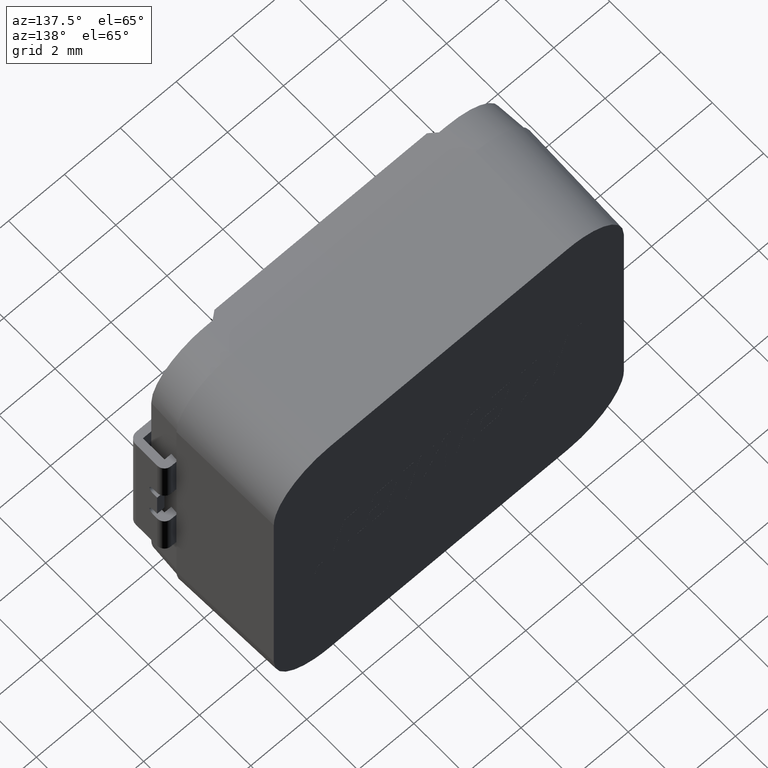
[diagram: clean part render]
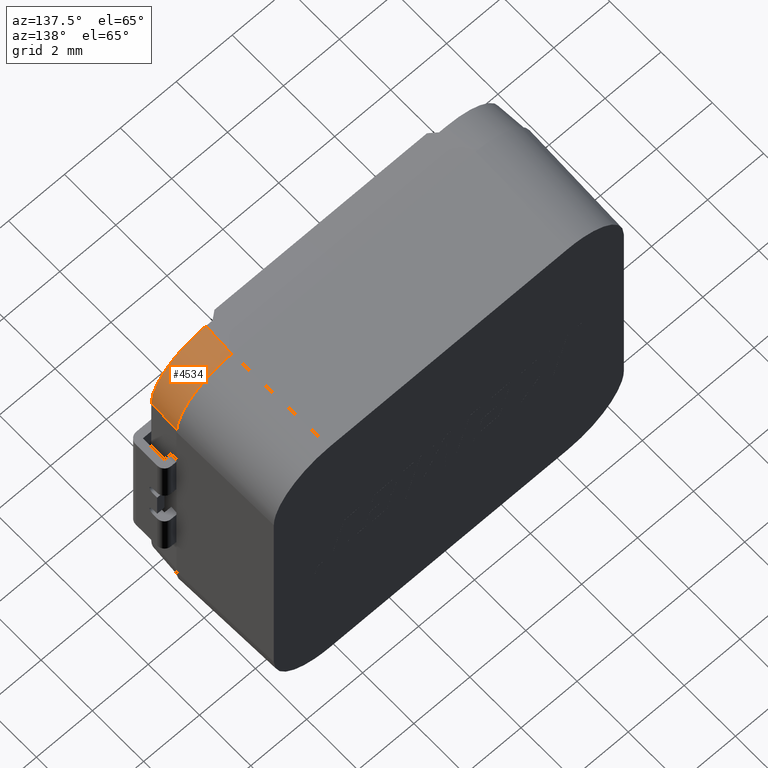
[diagram: same view with one face highlighted and labeled with its STEP entity id]
A machine part, auxiliary view. The second image highlights one B-rep face of the part: STEP entity #4534.
In plain terms, the highlighted cylindrical surface (partial cylindrical patch) has radius 1.96 mm, axis along (0.0599, 0.9964, 0.0599).
Its self-contained STEP definition (entity closure, byte-faithful):
#170 = VERTEX_POINT ( 'NONE', #727 ) ;
#220 = ORIENTED_EDGE ( 'NONE', *, *, #4684, .F. ) ;
#255 = CARTESIAN_POINT ( 'NONE',  ( 4.315276410966079723, 0.7812039017107661465, 4.315276410966071730 ) ) ;
#318 = DIRECTION ( 'NONE',  ( 0.05989553512709967775, 0.9964060666935327104, 0.05989553512709962224 ) ) ;
#437 = CARTESIAN_POINT ( 'NONE',  ( 4.315276410966081500, 0.6635975083169491917, 6.271744845731350715 ) ) ;
#520 = EDGE_CURVE ( 'NONE', #5753, #170, #1588, .T. ) ;
#705 = CARTESIAN_POINT ( 'NONE',  ( 6.310000000000004050, 1.299999999999999822, 5.500457160347259844 ) ) ;
#727 = CARTESIAN_POINT ( 'NONE',  ( 4.353531565234726841, 1.300000000000000044, 6.309999999999996056 ) ) ;
#891 = CARTESIAN_POINT ( 'NONE',  ( 5.434334431028243095, 0.2000000000000011768, 6.243877270680972202 ) ) ;
#1131 = CARTESIAN_POINT ( 'NONE',  ( 4.353531565234726841, 1.300000000000000044, 6.309999999999996056 ) ) ;
#1434 = CARTESIAN_POINT ( 'NONE',  ( 6.317018781848758202, 1.416762573371390665, 4.360550347083471223 ) ) ;
#1588 = LINE ( 'NONE', #437, #5830 ) ;
#1633 = CARTESIAN_POINT ( 'NONE',  ( 4.287408835915701211, 0.2000000000000007327, 6.243877270680973091 ) ) ;
#2042 = CARTESIAN_POINT ( 'NONE',  ( 6.310000000000004050, 1.300000000000000044, 4.353531565234716183 ) ) ;
#2712 = VERTEX_POINT ( 'NONE', #4695 ) ;
#2728 = CARTESIAN_POINT ( 'NONE',  ( 4.287408835915701211, 0.2000000000000007327, 6.243877270680973091 ) ) ;
#2913 = FACE_OUTER_BOUND ( 'NONE', #4085, .T. ) ;
#3109 = VECTOR ( 'NONE', #4141, 999.9999999999998863 ) ;
#3585 = CARTESIAN_POINT ( 'NONE',  ( 6.243877270680981084, 0.2000000000000015099, 5.434334431028235102 ) ) ;
#3595 = DIRECTION ( 'NONE',  ( 0.05989553512709968469, 0.9964060666935328214, 0.05989553512709962918 ) ) ;
#3870 = CARTESIAN_POINT ( 'NONE',  ( 5.500457160347267838, 1.299999999999999822, 6.309999999999996056 ) ) ;
#3971 = CYLINDRICAL_SURFACE ( 'NONE', #5817, 1.959999999999999742 ) ;
#4085 = EDGE_LOOP ( 'NONE', ( #4982, #220, #4558, #5168 ) ) ;
#4141 = DIRECTION ( 'NONE',  ( -0.05989553512709968469, -0.9964060666935328214, -0.05989553512709962918 ) ) ;
#4374 = LINE ( 'NONE', #1434, #3109 ) ;
#4460 = VERTEX_POINT ( 'NONE', #4764 ) ;
#4467 = CARTESIAN_POINT ( 'NONE',  ( 6.243877270680980196, 0.2000000000000016209, 4.287408835915693217 ) ) ;
#4469 = EDGE_CURVE ( 'NONE', #170, #2712, #4505, .T. ) ;
#4505 =( BOUNDED_CURVE ( )  B_SPLINE_CURVE ( 3, ( #1131, #3870, #705, #2042 ),
 .UNSPECIFIED., .F., .F. ) 
 B_SPLINE_CURVE_WITH_KNOTS ( ( 4, 4 ),
 ( 5.499587343392886574, 7.066783270966285890 ),
 .UNSPECIFIED. ) 
 CURVE ( )  GEOMETRIC_REPRESENTATION_ITEM ( )  RATIONAL_B_SPLINE_CURVE ( ( 1.000000000000000000, 0.8055857120563383322, 0.8055857120563383322, 1.000000000000000000 ) ) 
 REPRESENTATION_ITEM ( '' )  );
#4534 = ADVANCED_FACE ( 'NONE', ( #2913 ), #3971, .T. ) ;
#4558 = ORIENTED_EDGE ( 'NONE', *, *, #4469, .F. ) ;
#4684 = EDGE_CURVE ( 'NONE', #2712, #4460, #4374, .T. ) ;
#4695 = CARTESIAN_POINT ( 'NONE',  ( 6.310000000000004050, 1.300000000000000044, 4.353531565234716183 ) ) ;
#4764 = CARTESIAN_POINT ( 'NONE',  ( 6.243877270680980196, 0.2000000000000016209, 4.287408835915693217 ) ) ;
#4796 =( BOUNDED_CURVE ( )  B_SPLINE_CURVE ( 3, ( #4467, #3585, #891, #2728 ),
 .UNSPECIFIED., .F., .F. ) 
 B_SPLINE_CURVE_WITH_KNOTS ( ( 4, 4 ),
 ( 5.499587343392889238, 7.066783270966290331 ),
 .UNSPECIFIED. ) 
 CURVE ( )  GEOMETRIC_REPRESENTATION_ITEM ( )  RATIONAL_B_SPLINE_CURVE ( ( 1.000000000000000000, 0.8055857120563381102, 0.8055857120563381102, 1.000000000000000000 ) ) 
 REPRESENTATION_ITEM ( '' )  );
#4982 = ORIENTED_EDGE ( 'NONE', *, *, #5143, .F. ) ;
#5143 = EDGE_CURVE ( 'NONE', #4460, #5753, #4796, .T. ) ;
#5168 = ORIENTED_EDGE ( 'NONE', *, *, #520, .F. ) ;
#5229 = DIRECTION ( 'NONE',  ( -0.9981981810026931967, 0.06000326193562093013, 0.0000000000000000000 ) ) ;
#5753 = VERTEX_POINT ( 'NONE', #1633 ) ;
#5817 = AXIS2_PLACEMENT_3D ( 'NONE', #255, #318, #5229 ) ;
#5830 = VECTOR ( 'NONE', #3595, 999.9999999999998863 ) ;